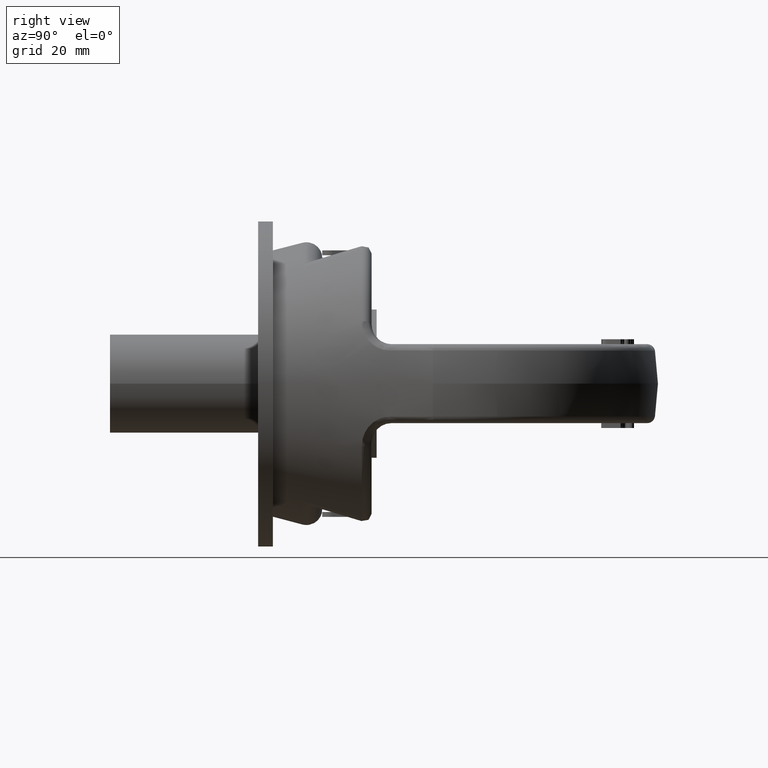
[diagram: clean part render]
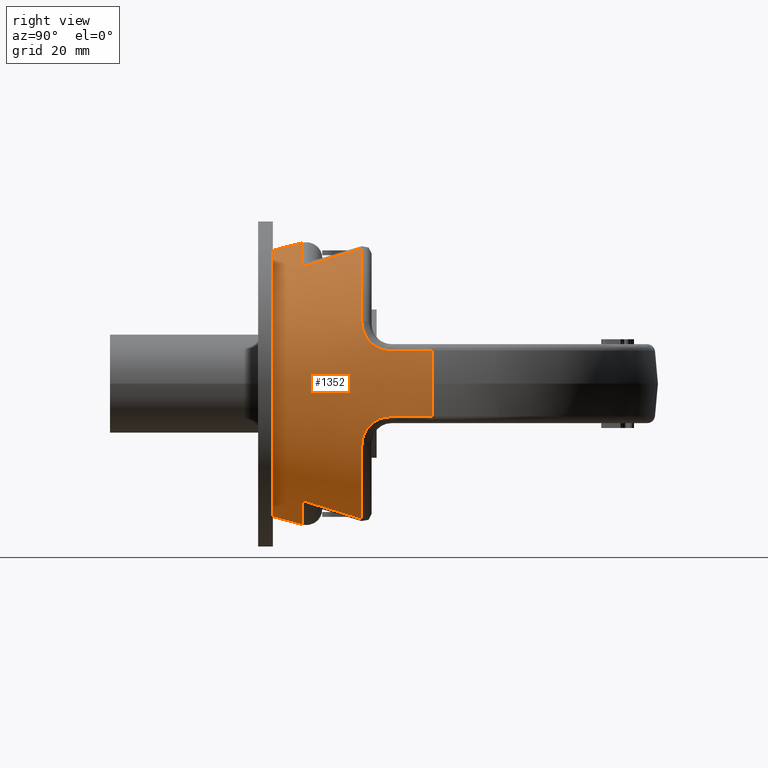
[diagram: same view with one face highlighted and labeled with its STEP entity id]
A machine part, right view. The second image highlights one B-rep face of the part: STEP entity #1352.
In plain terms, the highlighted conical surface has half-angle 14.447 deg.
Its self-contained STEP definition (entity closure, byte-faithful):
#1126=CONICAL_SURFACE('',#5190,26.2270908160888,14.447293765675);
#1352=ADVANCED_FACE('',(#1806,#1807),#1126,.T.);
#1714=CIRCLE('',#5181,35.3457807433766);
#1715=CIRCLE('',#5182,31.6376656225695);
#1716=CIRCLE('',#5183,28.5462394060255);
#1717=CIRCLE('',#5184,31.6376656225695);
#1718=CIRCLE('',#5185,35.3457807433766);
#1719=CIRCLE('',#5186,31.6376656225695);
#1720=CIRCLE('',#5187,28.5462394060255);
#1721=CIRCLE('',#5188,31.6376656225695);
#1722=CIRCLE('',#5189,27.0000000000001);
#1806=FACE_BOUND('',#1869,.T.);
#1807=FACE_BOUND('',#1870,.T.);
#1869=EDGE_LOOP('',(#2853,#2854,#2855,#2856,#2857,#2858,#2859,#2860,#2861,
#2862,#2863,#2864,#2865,#2866,#2867,#2868,#2869,#2870,#2871,#2872));
#1870=EDGE_LOOP('',(#2873));
#2853=ORIENTED_EDGE('',*,*,#4418,.T.);
#2854=ORIENTED_EDGE('',*,*,#4419,.T.);
#2855=ORIENTED_EDGE('',*,*,#4420,.T.);
#2856=ORIENTED_EDGE('',*,*,#4421,.T.);
#2857=ORIENTED_EDGE('',*,*,#4422,.T.);
#2858=ORIENTED_EDGE('',*,*,#4423,.T.);
#2859=ORIENTED_EDGE('',*,*,#4424,.T.);
#2860=ORIENTED_EDGE('',*,*,#4425,.T.);
#2861=ORIENTED_EDGE('',*,*,#4426,.T.);
#2862=ORIENTED_EDGE('',*,*,#4427,.T.);
#2863=ORIENTED_EDGE('',*,*,#4428,.T.);
#2864=ORIENTED_EDGE('',*,*,#4429,.T.);
#2865=ORIENTED_EDGE('',*,*,#4430,.T.);
#2866=ORIENTED_EDGE('',*,*,#4431,.T.);
#2867=ORIENTED_EDGE('',*,*,#4432,.T.);
#2868=ORIENTED_EDGE('',*,*,#4433,.T.);
#2869=ORIENTED_EDGE('',*,*,#4434,.T.);
#2870=ORIENTED_EDGE('',*,*,#4435,.T.);
#2871=ORIENTED_EDGE('',*,*,#4436,.T.);
#2872=ORIENTED_EDGE('',*,*,#4437,.T.);
#2873=ORIENTED_EDGE('',*,*,#4438,.F.);
#4027=VERTEX_POINT('',#6801);
#4028=VERTEX_POINT('',#6802);
#4029=VERTEX_POINT('',#6810);
#4030=VERTEX_POINT('',#6817);
#4031=VERTEX_POINT('',#6819);
#4032=VERTEX_POINT('',#6827);
#4033=VERTEX_POINT('',#6829);
#4034=VERTEX_POINT('',#6837);
#4035=VERTEX_POINT('',#6839);
#4036=VERTEX_POINT('',#6846);
#4037=VERTEX_POINT('',#6854);
#4038=VERTEX_POINT('',#6856);
#4039=VERTEX_POINT('',#6864);
#4040=VERTEX_POINT('',#6871);
#4041=VERTEX_POINT('',#6873);
#4042=VERTEX_POINT('',#6881);
#4043=VERTEX_POINT('',#6883);
#4044=VERTEX_POINT('',#6891);
#4045=VERTEX_POINT('',#6893);
#4046=VERTEX_POINT('',#6900);
#4047=VERTEX_POINT('',#6909);
#4418=EDGE_CURVE('',#4027,#4028,#1714,.T.);
#4419=EDGE_CURVE('',#4028,#4029,#4934,.T.);
#4420=EDGE_CURVE('',#4029,#4030,#4935,.T.);
#4421=EDGE_CURVE('',#4030,#4031,#1715,.T.);
#4422=EDGE_CURVE('',#4031,#4032,#4936,.T.);
#4423=EDGE_CURVE('',#4032,#4033,#1716,.T.);
#4424=EDGE_CURVE('',#4033,#4034,#4937,.T.);
#4425=EDGE_CURVE('',#4034,#4035,#1717,.T.);
#4426=EDGE_CURVE('',#4035,#4036,#4938,.T.);
#4427=EDGE_CURVE('',#4036,#4037,#4939,.T.);
#4428=EDGE_CURVE('',#4037,#4038,#1718,.T.);
#4429=EDGE_CURVE('',#4038,#4039,#4940,.T.);
#4430=EDGE_CURVE('',#4039,#4040,#4941,.T.);
#4431=EDGE_CURVE('',#4040,#4041,#1719,.T.);
#4432=EDGE_CURVE('',#4041,#4042,#4942,.T.);
#4433=EDGE_CURVE('',#4042,#4043,#1720,.T.);
#4434=EDGE_CURVE('',#4043,#4044,#4943,.T.);
#4435=EDGE_CURVE('',#4044,#4045,#1721,.T.);
#4436=EDGE_CURVE('',#4045,#4046,#4944,.T.);
#4437=EDGE_CURVE('',#4046,#4027,#4945,.T.);
#4438=EDGE_CURVE('',#4047,#4047,#1722,.T.);
#4934=B_SPLINE_CURVE_WITH_KNOTS('',3,(#6803,#6804,#6805,#6806,#6807,#6808,
#6809),.UNSPECIFIED.,.F.,.F.,(4,3,4),(0.,0.351944575783635,1.),
 .UNSPECIFIED.);
#4935=B_SPLINE_CURVE_WITH_KNOTS('',3,(#6811,#6812,#6813,#6814,#6815,#6816),
 .UNSPECIFIED.,.F.,.F.,(4,2,4),(0.,0.5,1.),.UNSPECIFIED.);
#4936=B_SPLINE_CURVE_WITH_KNOTS('',3,(#6820,#6821,#6822,#6823,#6824,#6825,
#6826),.UNSPECIFIED.,.F.,.F.,(4,3,4),(0.,0.253307562725241,1.),
 .UNSPECIFIED.);
#4937=B_SPLINE_CURVE_WITH_KNOTS('',3,(#6830,#6831,#6832,#6833,#6834,#6835,
#6836),.UNSPECIFIED.,.F.,.F.,(4,3,4),(0.,0.746692437274741,1.),
 .UNSPECIFIED.);
#4938=B_SPLINE_CURVE_WITH_KNOTS('',3,(#6840,#6841,#6842,#6843,#6844,#6845),
 .UNSPECIFIED.,.F.,.F.,(4,2,4),(0.,0.5,1.),.UNSPECIFIED.);
#4939=B_SPLINE_CURVE_WITH_KNOTS('',3,(#6847,#6848,#6849,#6850,#6851,#6852,
#6853),.UNSPECIFIED.,.F.,.F.,(4,3,4),(0.,0.351944577876832,1.),
 .UNSPECIFIED.);
#4940=B_SPLINE_CURVE_WITH_KNOTS('',3,(#6857,#6858,#6859,#6860,#6861,#6862,
#6863),.UNSPECIFIED.,.F.,.F.,(4,3,4),(0.,0.351944575783635,1.),
 .UNSPECIFIED.);
#4941=B_SPLINE_CURVE_WITH_KNOTS('',3,(#6865,#6866,#6867,#6868,#6869,#6870),
 .UNSPECIFIED.,.F.,.F.,(4,2,4),(0.,0.5,1.),.UNSPECIFIED.);
#4942=B_SPLINE_CURVE_WITH_KNOTS('',3,(#6874,#6875,#6876,#6877,#6878,#6879,
#6880),.UNSPECIFIED.,.F.,.F.,(4,3,4),(0.,0.253307562725241,1.),
 .UNSPECIFIED.);
#4943=B_SPLINE_CURVE_WITH_KNOTS('',3,(#6884,#6885,#6886,#6887,#6888,#6889,
#6890),.UNSPECIFIED.,.F.,.F.,(4,3,4),(0.,0.746692437274741,1.),
 .UNSPECIFIED.);
#4944=B_SPLINE_CURVE_WITH_KNOTS('',3,(#6894,#6895,#6896,#6897,#6898,#6899),
 .UNSPECIFIED.,.F.,.F.,(4,2,4),(0.,0.5,1.),.UNSPECIFIED.);
#4945=B_SPLINE_CURVE_WITH_KNOTS('',3,(#6901,#6902,#6903,#6904,#6905,#6906,
#6907),.UNSPECIFIED.,.F.,.F.,(4,3,4),(0.,0.351944577876832,1.),
 .UNSPECIFIED.);
#5181=AXIS2_PLACEMENT_3D('',#6800,#5530,#5531);
#5182=AXIS2_PLACEMENT_3D('',#6818,#5532,#5533);
#5183=AXIS2_PLACEMENT_3D('',#6828,#5534,#5535);
#5184=AXIS2_PLACEMENT_3D('',#6838,#5536,#5537);
#5185=AXIS2_PLACEMENT_3D('',#6855,#5538,#5539);
#5186=AXIS2_PLACEMENT_3D('',#6872,#5540,#5541);
#5187=AXIS2_PLACEMENT_3D('',#6882,#5542,#5543);
#5188=AXIS2_PLACEMENT_3D('',#6892,#5544,#5545);
#5189=AXIS2_PLACEMENT_3D('',#6908,#5546,#5547);
#5190=AXIS2_PLACEMENT_3D('',#6910,#5548,#5549);
#5530=DIRECTION('',(-1.57288272657658E-15,-1.,0.));
#5531=DIRECTION('',(1.,-1.5705170479693E-15,0.));
#5532=DIRECTION('',(0.,-1.,0.));
#5533=DIRECTION('',(-2.34291072916505E-15,0.,1.));
#5534=DIRECTION('',(-2.36553201269565E-16,-1.,-5.54223033272802E-31));
#5535=DIRECTION('',(-1.,2.43075587127689E-16,-2.34291072916505E-15));
#5536=DIRECTION('',(0.,-1.,0.));
#5537=DIRECTION('',(-2.34291072916505E-15,0.,1.));
#5538=DIRECTION('',(-1.57288272657658E-15,-1.,0.));
#5539=DIRECTION('',(1.,-1.5705170479693E-15,0.));
#5540=DIRECTION('',(0.,-1.,0.));
#5541=DIRECTION('',(0.,0.,-1.));
#5542=DIRECTION('',(2.36553201269565E-16,-1.,0.));
#5543=DIRECTION('',(1.,2.43075587127689E-16,0.));
#5544=DIRECTION('',(0.,-1.,0.));
#5545=DIRECTION('',(0.,0.,-1.));
#5546=DIRECTION('',(0.,-1.,0.));
#5547=DIRECTION('',(0.,0.,1.));
#5548=DIRECTION('',(1.57288272657658E-15,1.,0.));
#5549=DIRECTION('',(-1.,1.41777955619788E-15,0.));
#6800=CARTESIAN_POINT('',(-7.173345510532E-14,35.3936404836426,0.));
#6801=CARTESIAN_POINT('',(-34.7062311751498,35.3936404836427,6.69340974212037));
#6802=CARTESIAN_POINT('',(-34.7062311751497,35.3936404836426,-6.69340974212043));
#6803=CARTESIAN_POINT('',(-34.7062311751497,35.3936404836426,-6.69340974212043));
#6804=CARTESIAN_POINT('',(-34.4351027808389,34.362009799662,-6.6957172109976));
#6805=CARTESIAN_POINT('',(-34.1638484917395,33.3304123130842,-6.69807901411032));
#6806=CARTESIAN_POINT('',(-33.8924582604372,32.298850737647,-6.70049917515936));
#6807=CARTESIAN_POINT('',(-33.3927321143865,30.3993782030849,-6.70495555425617));
#6808=CARTESIAN_POINT('',(-32.8925458843692,28.5000270810925,-6.70960948541693));
#6809=CARTESIAN_POINT('',(-32.3918267165812,26.6008171170912,-6.71448980966182));
#6810=CARTESIAN_POINT('',(-32.3918267165812,26.6008171170912,-6.71448980966182));
#6811=CARTESIAN_POINT('',(-32.3918267165812,26.6008171170912,-6.71448980966182));
#6812=CARTESIAN_POINT('',(-31.9771709777301,25.0280426728148,-6.71853130554571));
#6813=CARTESIAN_POINT('',(-31.4550528894279,23.5600809543293,-7.42972231636656));
#6814=CARTESIAN_POINT('',(-30.293428311036,21.5347764174963,-9.6693808104592));
#6815=CARTESIAN_POINT('',(-29.6595515248192,21.0008171170912,-11.1303386826544));
#6816=CARTESIAN_POINT('',(-29.0125728783075,21.0008171170912,-12.6179436132203));
#6817=CARTESIAN_POINT('',(-29.0125728783075,21.0008171170912,-12.6179436132203));
#6818=CARTESIAN_POINT('',(9.43716783652366E-14,21.0008171170912,2.21104417771226E-28));
#6819=CARTESIAN_POINT('',(-15.7418653729249,21.0008171170912,-27.443315408788));
#6820=CARTESIAN_POINT('',(-15.7418653729249,21.0008171170912,-27.443315408788));
#6821=CARTESIAN_POINT('',(-15.7559999337422,19.985351477366,-27.1336014044787));
#6822=CARTESIAN_POINT('',(-15.7705161644019,18.970372691692,-26.822302747061));
#6823=CARTESIAN_POINT('',(-15.785445715597,17.9559479728204,-26.5092330839176));
#6824=CARTESIAN_POINT('',(-15.829453966245,14.9657001945547,-25.5863889859365));
#6825=CARTESIAN_POINT('',(-15.8770326783705,11.9801002864094,-24.6483685762119));
#6826=CARTESIAN_POINT('',(-15.9291755573174,9.00163423418237,-23.6885869205042));
#6827=CARTESIAN_POINT('',(-15.9291755573174,9.00163423418237,-23.6885869205042));
#6828=CARTESIAN_POINT('',(1.13244985854797E-13,9.00163423418236,2.65322892383348E-28));
#6829=CARTESIAN_POINT('',(15.9291755573175,9.00163423418238,-23.6885869205043));
#6830=CARTESIAN_POINT('',(15.9291755573175,9.00163423418238,-23.6885869205043));
#6831=CARTESIAN_POINT('',(15.8770326783706,11.9801002864094,-24.6483685762119));
#6832=CARTESIAN_POINT('',(15.8294539662451,14.9657001945547,-25.5863889859365));
#6833=CARTESIAN_POINT('',(15.7854457155971,17.9559479728204,-26.5092330839176));
#6834=CARTESIAN_POINT('',(15.770516164402,18.970372691692,-26.822302747061));
#6835=CARTESIAN_POINT('',(15.7559999337423,19.9853514773661,-27.1336014044787));
#6836=CARTESIAN_POINT('',(15.741865372925,21.0008171170914,-27.4433154087881));
#6837=CARTESIAN_POINT('',(15.741865372925,21.0008171170914,-27.4433154087881));
#6838=CARTESIAN_POINT('',(9.43716783652366E-14,21.0008171170912,2.21104417771226E-28));
#6839=CARTESIAN_POINT('',(29.0125728783077,21.0008171170912,-12.6179436132202));
#6840=CARTESIAN_POINT('',(29.0125728783077,21.0008171170912,-12.6179436132202));
#6841=CARTESIAN_POINT('',(29.6590363856156,21.0008171170912,-11.1315231477422));
#6842=CARTESIAN_POINT('',(30.2998072188144,21.5451223364937,-9.65670714345623));
#6843=CARTESIAN_POINT('',(31.4511382396781,23.5540331569879,-7.43764559870446));
#6844=CARTESIAN_POINT('',(31.9775476746336,25.0294714707481,-6.71852763402039));
#6845=CARTESIAN_POINT('',(32.3918267165814,26.6008171170912,-6.71448980966167));
#6846=CARTESIAN_POINT('',(32.3918267165814,26.6008171170912,-6.71448980966167));
#6847=CARTESIAN_POINT('',(32.3918267165814,26.6008171170912,-6.71448980966167));
#6848=CARTESIAN_POINT('',(32.6637562370651,27.6322361000919,-6.71183941335752));
#6849=CARTESIAN_POINT('',(32.9355283240974,28.6636967743861,-6.70925587898849));
#6850=CARTESIAN_POINT('',(33.2071551754231,29.6951958305948,-6.70673439433334));
#6851=CARTESIAN_POINT('',(33.7073170210823,31.5945532366508,-6.70209144238376));
#6852=CARTESIAN_POINT('',(34.2069871646573,33.4940406968811,-6.69765861475958));
#6853=CARTESIAN_POINT('',(34.7062311751498,35.3936404836427,-6.69340974212029));
#6854=CARTESIAN_POINT('',(34.7062311751498,35.3936404836427,-6.69340974212029));
#6855=CARTESIAN_POINT('',(-7.173345510532E-14,35.3936404836426,0.));
#6856=CARTESIAN_POINT('',(34.7062311751497,35.3936404836426,6.69340974212035));
#6857=CARTESIAN_POINT('',(34.7062311751497,35.3936404836426,6.69340974212035));
#6858=CARTESIAN_POINT('',(34.435102780839,34.362009799662,6.69571721099751));
#6859=CARTESIAN_POINT('',(34.1638484917395,33.3304123130842,6.69807901411024));
#6860=CARTESIAN_POINT('',(33.8924582604372,32.298850737647,6.70049917515928));
#6861=CARTESIAN_POINT('',(33.3927321143865,30.3993782030849,6.70495555425609));
#6862=CARTESIAN_POINT('',(32.8925458843692,28.5000270810925,6.70960948541685));
#6863=CARTESIAN_POINT('',(32.3918267165812,26.6008171170912,6.71448980966175));
#6864=CARTESIAN_POINT('',(32.3918267165812,26.6008171170912,6.71448980966175));
#6865=CARTESIAN_POINT('',(32.3918267165812,26.6008171170912,6.71448980966175));
#6866=CARTESIAN_POINT('',(31.9771709777301,25.0280426728148,6.71853130554564));
#6867=CARTESIAN_POINT('',(31.455052889428,23.5600809543293,7.42972231636648));
#6868=CARTESIAN_POINT('',(30.2934283110361,21.5347764174963,9.66938081045913));
#6869=CARTESIAN_POINT('',(29.6595515248192,21.0008171170912,11.1303386826543));
#6870=CARTESIAN_POINT('',(29.0125728783075,21.0008171170912,12.6179436132203));
#6871=CARTESIAN_POINT('',(29.0125728783075,21.0008171170912,12.6179436132203));
#6872=CARTESIAN_POINT('',(-9.43716783652366E-14,21.0008171170912,0.));
#6873=CARTESIAN_POINT('',(15.741865372925,21.0008171170912,27.4433154087879));
#6874=CARTESIAN_POINT('',(15.741865372925,21.0008171170912,27.4433154087879));
#6875=CARTESIAN_POINT('',(15.7559999337423,19.985351477366,27.1336014044786));
#6876=CARTESIAN_POINT('',(15.770516164402,18.970372691692,26.8223027470609));
#6877=CARTESIAN_POINT('',(15.7854457155971,17.9559479728204,26.5092330839176));
#6878=CARTESIAN_POINT('',(15.829453966245,14.9657001945547,25.5863889859364));
#6879=CARTESIAN_POINT('',(15.8770326783705,11.9801002864094,24.6483685762118));
#6880=CARTESIAN_POINT('',(15.9291755573174,9.00163423418237,23.6885869205042));
#6881=CARTESIAN_POINT('',(15.9291755573174,9.00163423418237,23.6885869205042));
#6882=CARTESIAN_POINT('',(-1.13244985854797E-13,9.00163423418236,0.));
#6883=CARTESIAN_POINT('',(-15.9291755573174,9.00163423418238,23.6885869205043));
#6884=CARTESIAN_POINT('',(-15.9291755573174,9.00163423418238,23.6885869205043));
#6885=CARTESIAN_POINT('',(-15.8770326783705,11.9801002864094,24.648368576212));
#6886=CARTESIAN_POINT('',(-15.829453966245,14.9657001945547,25.5863889859365));
#6887=CARTESIAN_POINT('',(-15.785445715597,17.9559479728204,26.5092330839177));
#6888=CARTESIAN_POINT('',(-15.770516164402,18.970372691692,26.8223027470611));
#6889=CARTESIAN_POINT('',(-15.7559999337423,19.9853514773661,27.1336014044788));
#6890=CARTESIAN_POINT('',(-15.741865372925,21.0008171170914,27.4433154087881));
#6891=CARTESIAN_POINT('',(-15.741865372925,21.0008171170914,27.4433154087881));
#6892=CARTESIAN_POINT('',(-9.43716783652366E-14,21.0008171170912,0.));
#6893=CARTESIAN_POINT('',(-29.0125728783077,21.0008171170912,12.6179436132203));
#6894=CARTESIAN_POINT('',(-29.0125728783077,21.0008171170912,12.6179436132203));
#6895=CARTESIAN_POINT('',(-29.6590363856156,21.0008171170912,11.1315231477423));
#6896=CARTESIAN_POINT('',(-30.2998072188143,21.5451223364937,9.65670714345631));
#6897=CARTESIAN_POINT('',(-31.4511382396781,23.5540331569879,7.43764559870454));
#6898=CARTESIAN_POINT('',(-31.9775476746335,25.0294714707481,6.71852763402046));
#6899=CARTESIAN_POINT('',(-32.3918267165813,26.6008171170912,6.71448980966175));
#6900=CARTESIAN_POINT('',(-32.3918267165813,26.6008171170912,6.71448980966175));
#6901=CARTESIAN_POINT('',(-32.3918267165813,26.6008171170912,6.71448980966175));
#6902=CARTESIAN_POINT('',(-32.6637562370651,27.6322361000919,6.7118394133576));
#6903=CARTESIAN_POINT('',(-32.9355283240974,28.6636967743861,6.70925587898857));
#6904=CARTESIAN_POINT('',(-33.2071551754231,29.6951958305948,6.70673439433342));
#6905=CARTESIAN_POINT('',(-33.7073170210823,31.5945532366508,6.70209144238384));
#6906=CARTESIAN_POINT('',(-34.2069871646573,33.4940406968811,6.69765861475966));
#6907=CARTESIAN_POINT('',(-34.7062311751498,35.3936404836427,6.69340974212037));
#6908=CARTESIAN_POINT('',(-1.27403500852703E-13,2.99999999999999,1.56599077210085E-14));
#6909=CARTESIAN_POINT('',(-1.27403500852703E-13,2.99999999999999,27.0000000000001));
#6910=CARTESIAN_POINT('',(-1.27403500852703E-13,4.16333634234434E-14,0.));